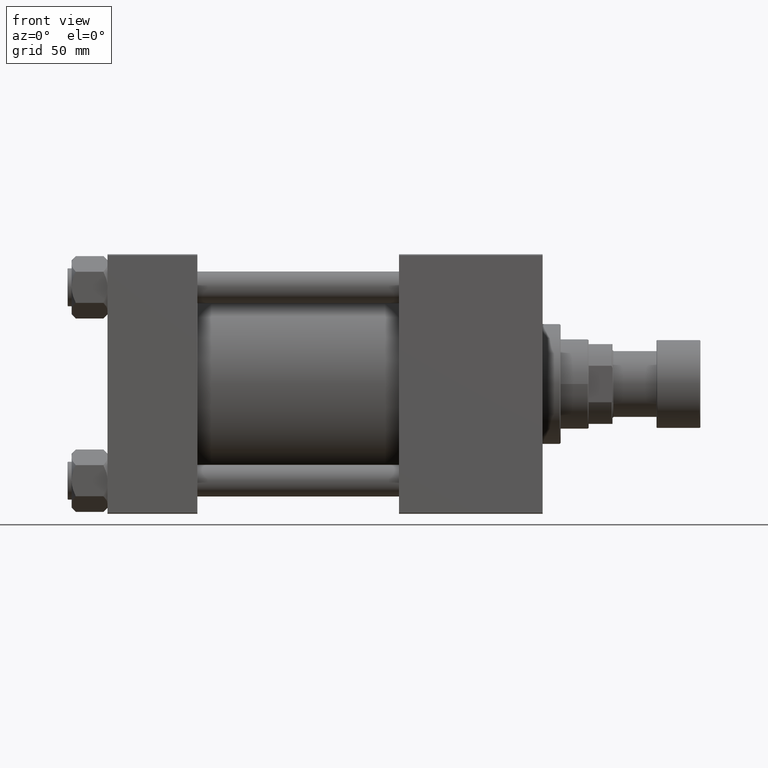
[diagram: clean part render]
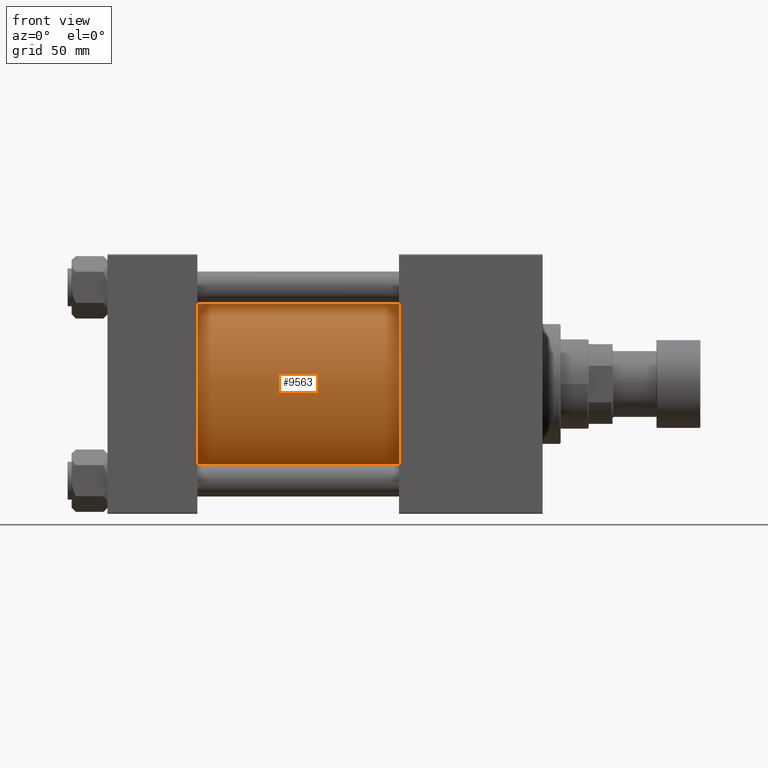
[diagram: same view with one face highlighted and labeled with its STEP entity id]
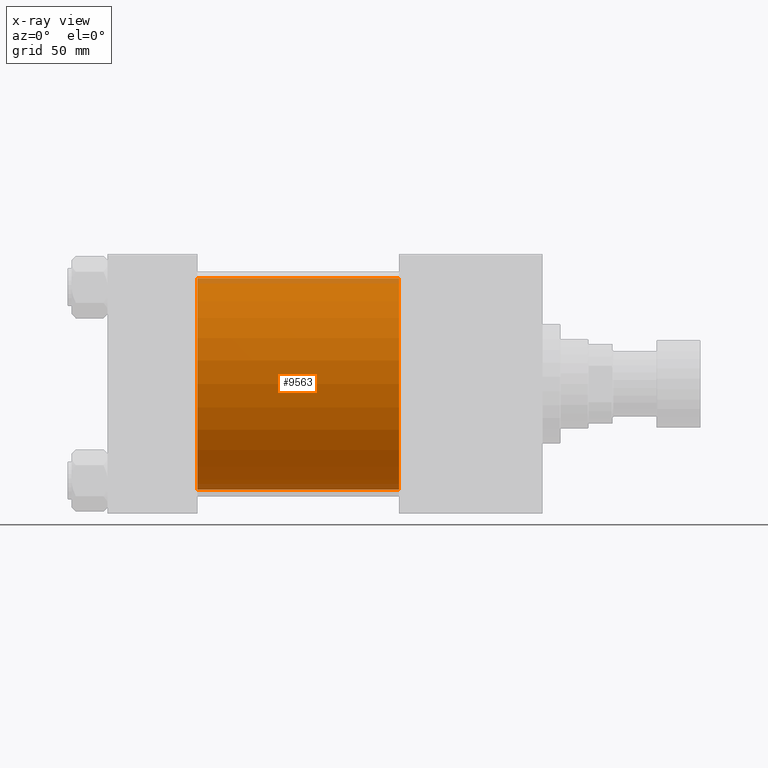
[diagram: x-ray of the same camera — body ghosted, the highlighted face saturated]
A machine part, front view. The second image highlights one B-rep face of the part: STEP entity #9563.
The next image is the same camera in x-ray: the body ghosted, the highlighted face saturated — about 5% of this face is hidden behind the body in this view.
In plain terms, the highlighted cylindrical surface (partial cylindrical patch) has radius 53 mm, axis along (-1, -0, -0).
Its self-contained STEP definition (entity closure, byte-faithful):
#2 = DIRECTION ( 'NONE',  ( -1.000000000000000000, -0.000000000000000000, -0.000000000000000000 ) ) ;
#436 = DIRECTION ( 'NONE',  ( -1.000000000000000000, -0.000000000000000000, -0.000000000000000000 ) ) ;
#1031 = DIRECTION ( 'NONE',  ( 1.000000000000000000, -0.000000000000000000, 0.000000000000000000 ) ) ;
#2824 = AXIS2_PLACEMENT_3D ( 'NONE', #32351, #2, #15820 ) ;
#5448 = CARTESIAN_POINT ( 'NONE',  ( 45.00000000000000000, -2.602085213965210642E-15, 0.000000000000000000 ) ) ;
#5651 = ORIENTED_EDGE ( 'NONE', *, *, #7728, .F. ) ;
#7484 = CARTESIAN_POINT ( 'NONE',  ( 146.0000000000000284, -2.602085213965210642E-15, 53.00000000000000711 ) ) ;
#7728 = EDGE_CURVE ( 'NONE', #29034, #31708, #32472, .T. ) ;
#8478 = ORIENTED_EDGE ( 'NONE', *, *, #24166, .F. ) ;
#8479 = CARTESIAN_POINT ( 'NONE',  ( 146.0000000000000284, 3.888542821515762466E-15, -53.00000000000000711 ) ) ;
#8539 = FACE_OUTER_BOUND ( 'NONE', #17446, .T. ) ;
#9563 = ADVANCED_FACE ( 'NONE', ( #8539 ), #12184, .T. ) ;
#10179 = AXIS2_PLACEMENT_3D ( 'NONE', #19177, #33957, #42248 ) ;
#12184 = CYLINDRICAL_SURFACE ( 'NONE', #2824, 53.00000000000000711 ) ;
#15782 = DIRECTION ( 'NONE',  ( -1.000000000000000000, -0.000000000000000000, -0.000000000000000000 ) ) ;
#15820 = DIRECTION ( 'NONE',  ( 0.000000000000000000, 0.000000000000000000, 1.000000000000000000 ) ) ;
#17446 = EDGE_LOOP ( 'NONE', ( #8478, #5651, #38821, #43198 ) ) ;
#18340 = CARTESIAN_POINT ( 'NONE',  ( 146.0000000000000284, -2.602085213965210642E-15, 53.00000000000000711 ) ) ;
#19177 = CARTESIAN_POINT ( 'NONE',  ( 146.0000000000000284, -2.602085213965210642E-15, 0.000000000000000000 ) ) ;
#22376 = VERTEX_POINT ( 'NONE', #24249 ) ;
#23502 = CARTESIAN_POINT ( 'NONE',  ( 146.0000000000000284, 3.888542821515762466E-15, -53.00000000000000711 ) ) ;
#24166 = EDGE_CURVE ( 'NONE', #31708, #40980, #48099, .T. ) ;
#24249 = CARTESIAN_POINT ( 'NONE',  ( 45.00000000000000000, -2.602085213965210642E-15, 53.00000000000000711 ) ) ;
#28619 = EDGE_CURVE ( 'NONE', #22376, #40980, #29629, .T. ) ;
#29034 = VERTEX_POINT ( 'NONE', #18340 ) ;
#29220 = CARTESIAN_POINT ( 'NONE',  ( 45.00000000000000000, 3.888542821515762466E-15, -53.00000000000000711 ) ) ;
#29629 = CIRCLE ( 'NONE', #40396, 53.00000000000000711 ) ;
#31708 = VERTEX_POINT ( 'NONE', #8479 ) ;
#32351 = CARTESIAN_POINT ( 'NONE',  ( 146.0000000000000284, -2.602085213965210642E-15, 0.000000000000000000 ) ) ;
#32472 = CIRCLE ( 'NONE', #10179, 53.00000000000000711 ) ;
#33957 = DIRECTION ( 'NONE',  ( 1.000000000000000000, 0.000000000000000000, 0.000000000000000000 ) ) ;
#38821 = ORIENTED_EDGE ( 'NONE', *, *, #48488, .T. ) ;
#38834 = LINE ( 'NONE', #7484, #42722 ) ;
#40396 = AXIS2_PLACEMENT_3D ( 'NONE', #5448, #1031, #48715 ) ;
#40980 = VERTEX_POINT ( 'NONE', #29220 ) ;
#42248 = DIRECTION ( 'NONE',  ( 0.000000000000000000, 0.000000000000000000, -1.000000000000000000 ) ) ;
#42722 = VECTOR ( 'NONE', #15782, 1000.000000000000000 ) ;
#43198 = ORIENTED_EDGE ( 'NONE', *, *, #28619, .T. ) ;
#48099 = LINE ( 'NONE', #23502, #49515 ) ;
#48488 = EDGE_CURVE ( 'NONE', #29034, #22376, #38834, .T. ) ;
#48715 = DIRECTION ( 'NONE',  ( 0.000000000000000000, 0.000000000000000000, 1.000000000000000000 ) ) ;
#49515 = VECTOR ( 'NONE', #436, 1000.000000000000000 ) ;